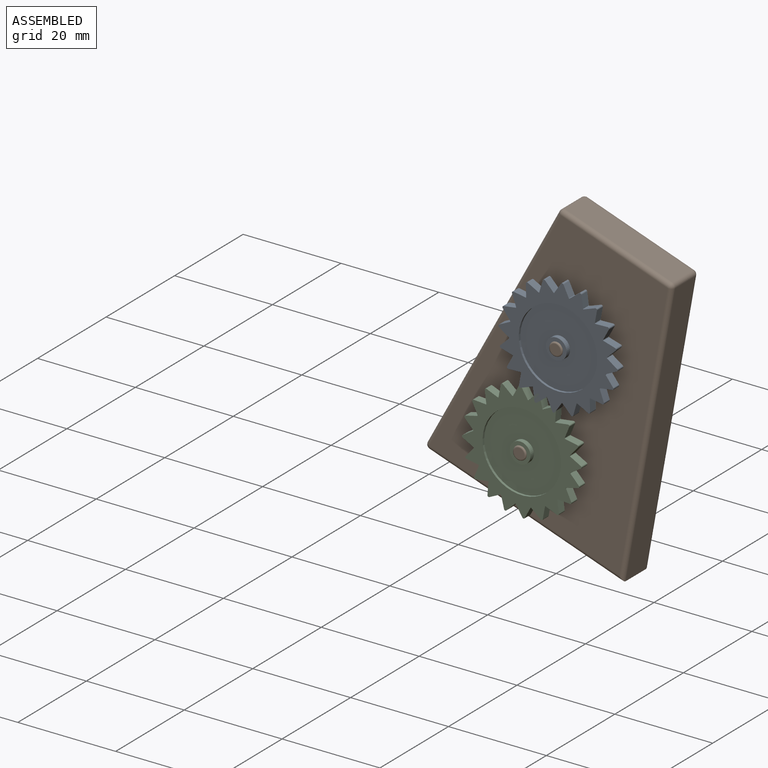
[diagram: assembled view]
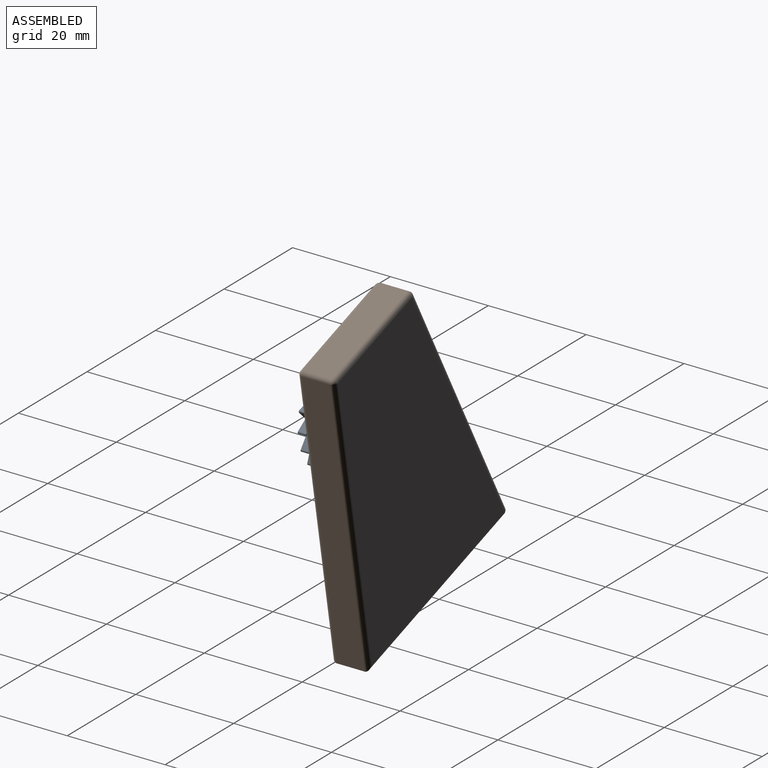
[diagram: assembled view, second angle]
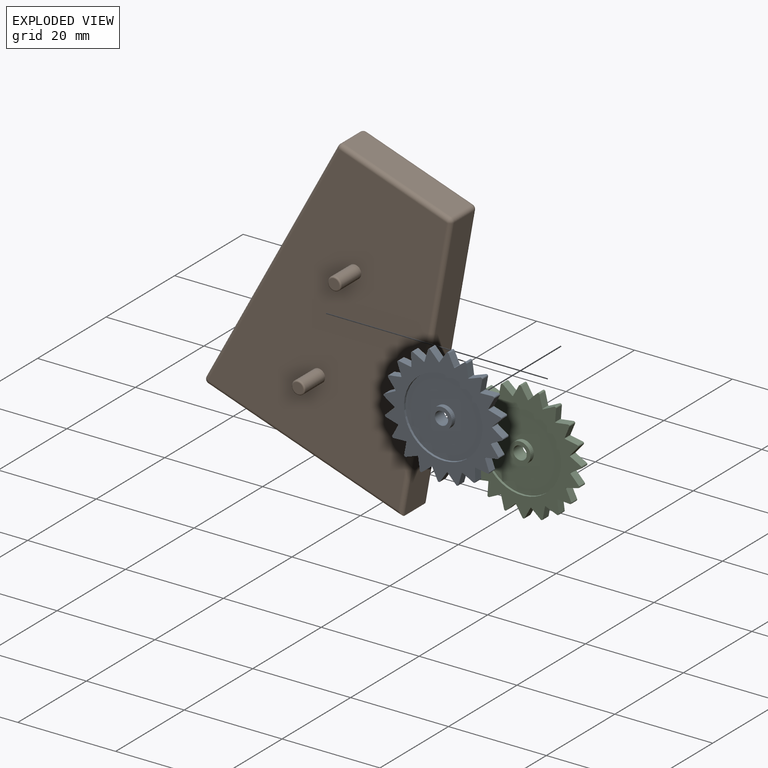
[diagram: exploded view]
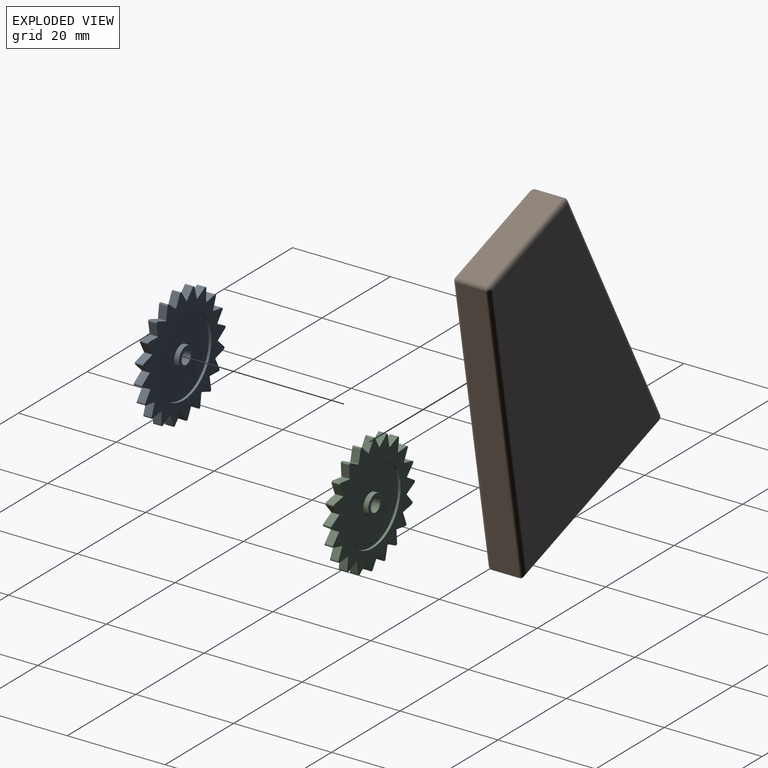
[diagram: exploded view, second angle]
ASSEMBLY  parts=3 mates=2
PART A: 91 faces, bbox 24.4x2.7x24.4 mm
  f0: cylinder r=10mm len=1.7mm, axis (0,1,0), area 0.2mm2, adj f1,f79,f80,f81
  f1: plane 2.48x1.7mm, normal (0.21,0,-0.98), area 4.3mm2, adj f0,f2,f80,f81
  f2: cylinder r=0.28mm len=1.7mm, axis (0,1,0), area 1mm2, adj f1,f3,f80,f81
  f3: plane 1.89x1.7mm, normal (0.74,0,0.67), area 4.3mm2, adj f2,f4,f80,f81
  f4: cylinder r=10mm len=1.7mm, axis (0,1,0), area 0.2mm2, adj f3,f5,f80,f81
  f5: plane 2.2x1.7mm, normal (0.5,0,-0.87), area 4.3mm2, adj f4,f6,f80,f81
  f6: cylinder r=0.28mm len=1.7mm, axis (0,1,0), area 1mm2, adj f5,f7,f80,f81
  f7: plane 2.2x1.7mm, normal (0.5,0,0.87), area 4.3mm2, adj f6,f8,f80,f81
  f8: cylinder r=10mm len=1.7mm, axis (0,1,0), area 0.2mm2, adj f7,f9,f80,f81
  f9: plane 1.89x1.7mm, normal (0.74,0,-0.67), area 4.3mm2, adj f8,f10,f80,f81
  f10: cylinder r=0.28mm len=1.7mm, axis (0,1,0), area 1mm2, adj f9,f11,f80,f81
  f11: plane 2.48x1.7mm, normal (0.21,0,0.98), area 4.3mm2, adj f10,f12,f80,f81
  f12: cylinder r=10mm len=1.7mm, axis (0,1,0), area 0.2mm2, adj f11,f13,f80,f81
  f13: plane 2.32x1.7mm, normal (0.91,0,-0.41), area 4.3mm2, adj f12,f14,f80,f81
  f14: cylinder r=0.28mm len=1.7mm, axis (0,1,0), area 1mm2, adj f13,f15,f80,f81
  f15: plane 2.52x1.7mm, normal (-0.1,0,0.99), area 4.3mm2, adj f14,f16,f80,f81
  f16: cylinder r=10mm len=1.7mm, axis (0,1,0), area 0.2mm2, adj f15,f17,f80,f81
  f17: plane 2.52x1.7mm, normal (0.99,0,-0.1), area 4.3mm2, adj f16,f18,f80,f81
  f18: cylinder r=0.28mm len=1.7mm, axis (0,1,0), area 1mm2, adj f17,f19,f80,f81
  f19: plane 2.32x1.7mm, normal (-0.41,0,0.91), area 4.3mm2, adj f18,f20,f80,f81
  f20: cylinder r=10mm len=1.7mm, axis (0,1,0), area 0.2mm2, adj f19,f21,f80,f81
  f21: plane 2.48x1.7mm, normal (0.98,0,0.21), area 4.3mm2, adj f20,f22,f80,f81
  f22: cylinder r=0.28mm len=1.7mm, axis (0,1,0), area 1mm2, adj f21,f23,f80,f81
  f23: plane 1.89x1.7mm, normal (-0.67,0,0.74), area 4.3mm2, adj f22,f24,f80,f81
  f24: cylinder r=10mm len=1.7mm, axis (0,1,0), area 0.2mm2, adj f23,f25,f80,f81
  f25: plane 2.2x1.7mm, normal (0.87,0,0.5), area 4.3mm2, adj f24,f26,f80,f81
  f26: cylinder r=0.28mm len=1.7mm, axis (0,1,0), area 1mm2, adj f25,f27,f80,f81
  f27: plane 2.2x1.7mm, normal (-0.87,0,0.5), area 4.3mm2, adj f26,f28,f80,f81
  f28: cylinder r=10mm len=1.7mm, axis (0,1,0), area 0.2mm2, adj f27,f29,f80,f81
  f29: plane 1.89x1.7mm, normal (0.67,0,0.74), area 4.3mm2, adj f28,f30,f80,f81
  f30: cylinder r=0.28mm len=1.7mm, axis (0,1,0), area 1mm2, adj f29,f31,f80,f81
  f31: plane 2.48x1.7mm, normal (-0.98,0,0.21), area 4.3mm2, adj f30,f32,f80,f81
  f32: cylinder r=10mm len=1.7mm, axis (0,1,0), area 0.2mm2, adj f31,f33,f80,f81
  f33: plane 2.32x1.7mm, normal (0.41,0,0.91), area 4.3mm2, adj f32,f34,f80,f81
  f34: cylinder r=0.28mm len=1.7mm, axis (0,1,0), area 1mm2, adj f33,f35,f80,f81
  f35: plane 2.52x1.7mm, normal (-0.99,0,-0.1), area 4.3mm2, adj f34,f36,f80,f81
  f36: cylinder r=10mm len=1.7mm, axis (0,1,0), area 0.2mm2, adj f35,f37,f80,f81
  f37: plane 2.52x1.7mm, normal (0.1,0,0.99), area 4.3mm2, adj f36,f38,f80,f81
  f38: cylinder r=0.28mm len=1.7mm, axis (0,1,0), area 1mm2, adj f37,f39,f80,f81
  f39: plane 2.32x1.7mm, normal (-0.91,0,-0.41), area 4.3mm2, adj f38,f40,f80,f81
  f40: cylinder r=10mm len=1.7mm, axis (0,1,0), area 0.2mm2, adj f39,f41,f80,f81
  f41: plane 2.48x1.7mm, normal (-0.21,0,0.98), area 4.3mm2, adj f40,f42,f80,f81
  f42: cylinder r=0.28mm len=1.7mm, axis (0,1,0), area 1mm2, adj f41,f43,f80,f81
  f43: plane 1.89x1.7mm, normal (-0.74,0,-0.67), area 4.3mm2, adj f42,f44,f80,f81
  f44: cylinder r=10mm len=1.7mm, axis (0,1,0), area 0.2mm2, adj f43,f45,f80,f81
  f45: plane 2.2x1.7mm, normal (-0.5,0,0.87), area 4.3mm2, adj f44,f46,f80,f81
  f46: cylinder r=0.28mm len=1.7mm, axis (0,1,0), area 1mm2, adj f45,f47,f80,f81
  f47: plane 2.2x1.7mm, normal (-0.5,0,-0.87), area 4.3mm2, adj f46,f48,f80,f81
  f48: cylinder r=10mm len=1.7mm, axis (0,1,0), area 0.2mm2, adj f47,f49,f80,f81
  f49: plane 1.89x1.7mm, normal (-0.74,0,0.67), area 4.3mm2, adj f48,f50,f80,f81
  f50: cylinder r=0.28mm len=1.7mm, axis (0,1,0), area 1mm2, adj f49,f51,f80,f81
  f51: plane 2.48x1.7mm, normal (-0.21,0,-0.98), area 4.3mm2, adj f50,f52,f80,f81
  f52: cylinder r=10mm len=1.7mm, axis (0,1,0), area 0.2mm2, adj f51,f53,f80,f81
  f53: plane 2.32x1.7mm, normal (-0.91,0,0.41), area 4.3mm2, adj f52,f54,f80,f81
  f54: cylinder r=0.28mm len=1.7mm, axis (0,1,0), area 1mm2, adj f53,f55,f80,f81
  f55: plane 2.52x1.7mm, normal (0.1,0,-0.99), area 4.3mm2, adj f54,f56,f80,f81
  f56: cylinder r=10mm len=1.7mm, axis (0,1,0), area 0.2mm2, adj f55,f57,f80,f81
  f57: plane 2.52x1.7mm, normal (-0.99,0,0.1), area 4.3mm2, adj f56,f58,f80,f81
  f58: cylinder r=0.28mm len=1.7mm, axis (0,1,0), area 1mm2, adj f57,f59,f80,f81
  f59: plane 2.32x1.7mm, normal (0.41,0,-0.91), area 4.3mm2, adj f58,f60,f80,f81
  f60: cylinder r=10mm len=1.7mm, axis (0,1,0), area 0.2mm2, adj f59,f61,f80,f81
  f61: plane 2.48x1.7mm, normal (-0.98,0,-0.21), area 4.3mm2, adj f60,f62,f80,f81
  f62: cylinder r=0.28mm len=1.7mm, axis (0,1,0), area 1mm2, adj f61,f63,f80,f81
  f63: plane 1.89x1.7mm, normal (0.67,0,-0.74), area 4.3mm2, adj f62,f64,f80,f81
  f64: cylinder r=10mm len=1.7mm, axis (0,1,0), area 0.2mm2, adj f63,f65,f80,f81
  f65: plane 2.2x1.7mm, normal (-0.87,0,-0.5), area 4.3mm2, adj f64,f66,f80,f81
  f66: cylinder r=0.28mm len=1.7mm, axis (0,1,0), area 1mm2, adj f65,f67,f80,f81
  f67: plane 2.2x1.7mm, normal (0.87,0,-0.5), area 4.3mm2, adj f66,f68,f80,f81
  f68: cylinder r=10mm len=1.7mm, axis (0,1,0), area 0.2mm2, adj f67,f69,f80,f81
  f69: plane 1.89x1.7mm, normal (-0.67,0,-0.74), area 4.3mm2, adj f68,f70,f80,f81
  f70: cylinder r=0.28mm len=1.7mm, axis (0,1,0), area 1mm2, adj f69,f71,f80,f81
  f71: plane 2.48x1.7mm, normal (0.98,0,-0.21), area 4.3mm2, adj f70,f72,f80,f81
  f72: cylinder r=10mm len=1.7mm, axis (0,1,0), area 0.2mm2, adj f71,f73,f80,f81
  f73: plane 2.32x1.7mm, normal (-0.41,0,-0.91), area 4.3mm2, adj f72,f74,f80,f81
  f74: cylinder r=0.28mm len=1.7mm, axis (0,1,0), area 1mm2, adj f73,f75,f80,f81
  f75: plane 2.52x1.7mm, normal (0.99,0,0.1), area 4.3mm2, adj f74,f76,f80,f81
  f76: cylinder r=10mm len=1.7mm, axis (0,1,0), area 0.2mm2, adj f75,f77,f80,f81
  f77: plane 2.52x1.7mm, normal (-0.1,0,-0.99), area 4.3mm2, adj f76,f78,f80,f81
  f78: cylinder r=0.28mm len=1.7mm, axis (0,1,0), area 1mm2, adj f77,f79,f80,f81
  f79: plane 2.32x1.7mm, normal (0.91,0,0.41), area 4.3mm2, adj f0,f78,f80,f81
  f80: plane 24.45x24.45mm, normal (0,-1,0), area 185.6mm2, adj f0,f1,f2,f3,f4,f5,f6,f7
  f81: plane 24.45x24.45mm, normal (0,1,0), area 184.8mm2, adj f0,f1,f2,f3,f4,f5,f6,f7
  f82: cylinder r=2.13mm len=4.27mm, axis (0,1,0), area 13.4mm2, adj f84,f90
  f83: cylinder r=8.03mm len=16.06mm, axis (0,1,0), area 25.2mm2, adj f81,f84
  f84: plane 16.06x16.06mm, normal (0,1,0), area 188.3mm2, adj f82,f83
  f85: cylinder r=2.12mm len=4.25mm, axis (0,-1,0), area 13.3mm2, adj f87,f89
  f86: cylinder r=8.02mm len=16.03mm, axis (0,-1,0), area 25.2mm2, adj f80,f87
  f87: plane 16.03x16.03mm, normal (0,-1,0), area 187.7mm2, adj f85,f86
  f88: cylinder r=1.36mm len=2.72mm, axis (0,-1,0), area 23.1mm2, adj f89,f90
  f89: plane 4.25x4.25mm, normal (0,-1,0), area 8.3mm2, adj f85,f88
  f90: plane 4.27x4.27mm, normal (0,1,0), area 8.5mm2, adj f82,f88
PART B: 29 faces, bbox 57.8x13.6x43 mm
  f0: plane 55.86x9.01mm, normal (0.16,0,0.99), area 329.3mm2, adj f11,f16,f19,f22
  f1: plane 42.12x5.82mm, normal (-1,0,0), area 245.2mm2, adj f2,f17,f18,f22
  f2: plane 56.91x9.18mm, normal (0.16,0,-0.99), area 335.5mm2, adj f1,f6,f13,f14
  f3: plane 23.05x5.82mm, normal (1,0,0), area 134.1mm2, adj f6,f7,f10,f11
  f4: plane 55.86x41.07mm, normal (0,-1,0), area 1779.2mm2, adj f7,f13,f16,f17,f23,f25
  f5: plane 55.86x41.07mm, normal (0,1,0), area 1790.8mm2, adj f10,f14,f18,f19
  f6: cylinder r=0.9mm len=5.82mm, axis (0,1,0), area 7.4mm2, adj f2,f3,f8,f9
  f7: cylinder r=0.9mm len=23.05mm, axis (0,0,-1), area 32.6mm2, adj f3,f4,f8,f12
  f8: sphere r=0.9mm, area 1.1mm2, adj f6,f7,f13
  f9: sphere r=0.9mm, area 1.1mm2, adj f6,f10,f14
  f10: cylinder r=0.9mm len=23.05mm, axis (0,0,1), area 32.6mm2, adj f3,f5,f9,f15
  f11: cylinder r=0.9mm len=5.82mm, axis (0,1,0), area 7.4mm2, adj f0,f3,f12,f15
  f12: sphere r=0.9mm, area 1.1mm2, adj f7,f11,f16
  f13: cylinder r=0.9mm len=57.05mm, axis (-0.99,0,-0.16), area 80.9mm2, adj f2,f4,f8,f17
  f14: cylinder r=0.9mm len=57.05mm, axis (0.99,0,0.16), area 80.9mm2, adj f2,f5,f9,f18
  f15: sphere r=0.9mm, area 1.1mm2, adj f10,f11,f19
  f16: cylinder r=0.9mm len=56.01mm, axis (0.99,0,-0.16), area 80mm2, adj f0,f4,f12,f20
  f17: cylinder r=0.9mm len=42.12mm, axis (0,0,1), area 59mm2, adj f1,f4,f13,f20
  f18: cylinder r=0.9mm len=42.12mm, axis (0,0,-1), area 59mm2, adj f1,f5,f14,f21
  f19: cylinder r=0.9mm len=56.01mm, axis (-0.99,0,0.16), area 80mm2, adj f0,f5,f15,f21
  f20: sphere r=0.9mm, area 1.4mm2, adj f16,f17,f22
  f21: sphere r=0.9mm, area 1.4mm2, adj f18,f19,f22
  f22: cylinder r=0.9mm len=5.82mm, axis (0,1,0), area 9.1mm2, adj f0,f1,f20,f21
  f23: cylinder r=1.36mm len=5.7mm, axis (0,1,0), area 48.8mm2, adj f4,f28
  f24: plane 2.12x2.12mm, normal (0,-1,0), area 3.5mm2, adj f28
  f25: cylinder r=1.36mm len=5.7mm, axis (0,1,0), area 48.8mm2, adj f4,f27
  f26: plane 2.12x2.12mm, normal (0,-1,0), area 3.5mm2, adj f27
  f27: torus R=1.06mm, axis (0,-1,0), area 3.7mm2, adj f25,f26
  f28: torus R=1.06mm, axis (0,-1,0), area 3.7mm2, adj f23,f24
PART C: same geometry as A
PLACE A rot(axis=(0,-1,0),121.8deg) t=(23.25,-2.41,4.98)mm
PLACE B rot(axis=(0,-1,0),70.7deg) t=(15.85,8.71,-16.19)mm fixed
PLACE C rot(axis=(0,-1,0),19.7deg) t=(15.85,-2.41,-16.19)mm
MATE revolute B.f23 <-> C.f88  axis (0,-1,0) through (15.85,-4.61,-16.19)mm
MATE revolute B.f25 <-> A.f88  axis (0,-1,0) through (23.25,-4.61,4.98)mm
